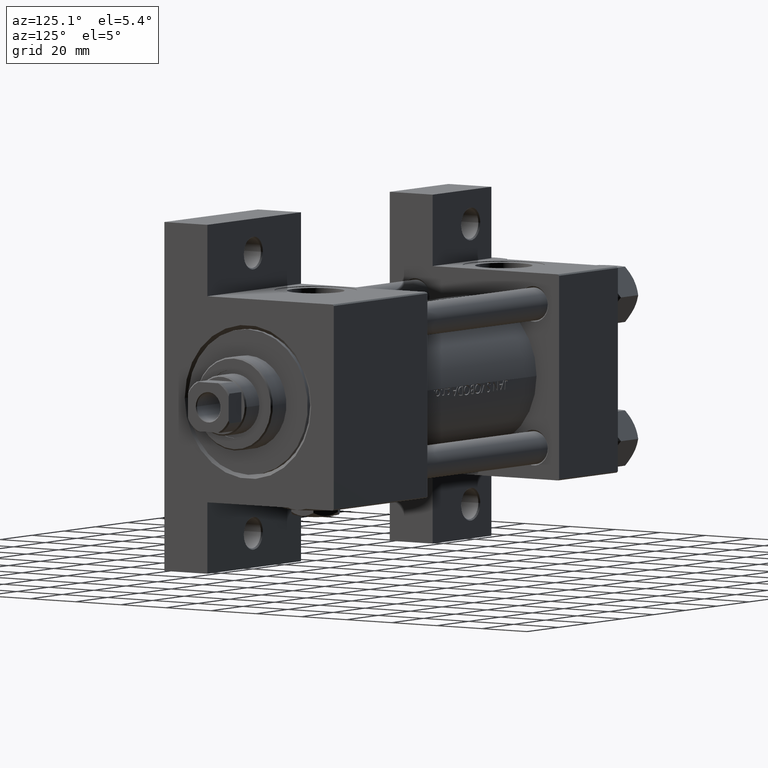
[diagram: clean part render]
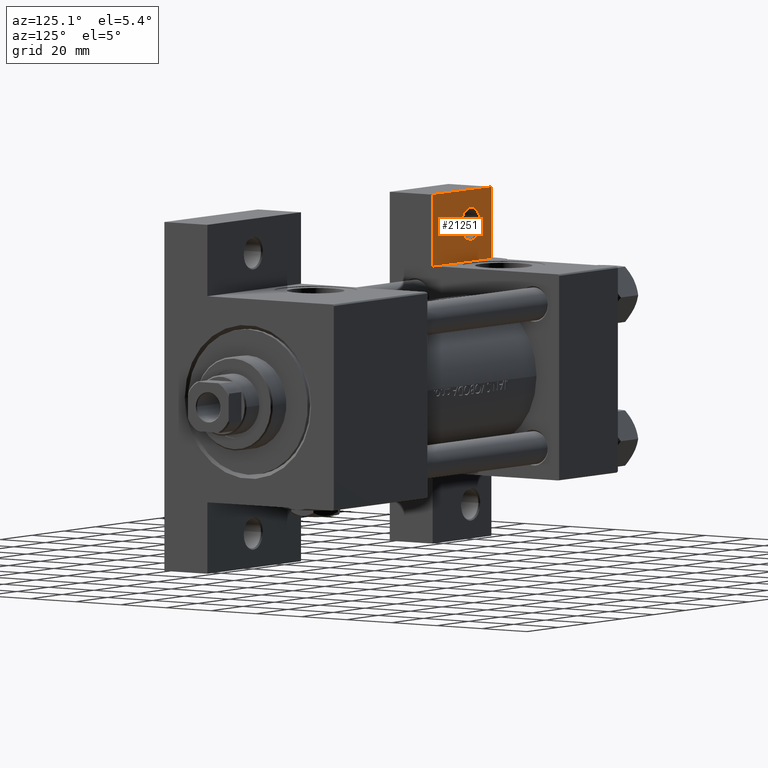
[diagram: same view with one face highlighted and labeled with its STEP entity id]
A machine part, auxiliary view. The second image highlights one B-rep face of the part: STEP entity #21251.
In plain terms, the highlighted planar face has unit normal (0, -1, 0).
Its self-contained STEP definition (entity closure, byte-faithful):
#380 = CARTESIAN_POINT ( 'NONE',  ( 3.977209754999747208E-16, -63.50000000000000000, -18.50000000000000355 ) ) ;
#1837 = VECTOR ( 'NONE', #41695, 1000.000000000000000 ) ;
#2807 = EDGE_CURVE ( 'NONE', #30481, #24777, #46734, .T. ) ;
#3868 = FACE_BOUND ( 'NONE', #40751, .T. ) ;
#4135 = DIRECTION ( 'NONE',  ( 0.000000000000000000, 0.000000000000000000, -1.000000000000000000 ) ) ;
#4576 = AXIS2_PLACEMENT_3D ( 'NONE', #9588, #38992, #5590 ) ;
#5590 = DIRECTION ( 'NONE',  ( -1.000000000000000000, 0.000000000000000000, 0.000000000000000000 ) ) ;
#5653 = EDGE_CURVE ( 'NONE', #26588, #34183, #33521, .T. ) ;
#5978 = CARTESIAN_POINT ( 'NONE',  ( 37.00000000000000000, -63.50000000000000000, -18.50000000000000355 ) ) ;
#6605 = ORIENTED_EDGE ( 'NONE', *, *, #39238, .T. ) ;
#6924 = EDGE_CURVE ( 'NONE', #37749, #31286, #42740, .T. ) ;
#9588 = CARTESIAN_POINT ( 'NONE',  ( 12.99999999999999822, -51.00000000000001421, -18.50000000000000000 ) ) ;
#11605 = EDGE_CURVE ( 'NONE', #24777, #30481, #23827, .T. ) ;
#12734 = ORIENTED_EDGE ( 'NONE', *, *, #11605, .T. ) ;
#12883 = ORIENTED_EDGE ( 'NONE', *, *, #6924, .T. ) ;
#15580 = DIRECTION ( 'NONE',  ( 1.000000000000000000, 0.000000000000000000, 0.000000000000000000 ) ) ;
#15696 = ORIENTED_EDGE ( 'NONE', *, *, #2807, .T. ) ;
#16197 = ORIENTED_EDGE ( 'NONE', *, *, #5653, .T. ) ;
#19320 = DIRECTION ( 'NONE',  ( -1.000000000000000000, 0.000000000000000000, -0.000000000000000000 ) ) ;
#19353 = LINE ( 'NONE', #34544, #48778 ) ;
#21251 = ADVANCED_FACE ( 'NONE', ( #3868, #37993 ), #33511, .F. ) ;
#21672 = CARTESIAN_POINT ( 'NONE',  ( 12.99999999999999822, -51.00000000000001421, -18.50000000000000000 ) ) ;
#22579 = DIRECTION ( 'NONE',  ( 4.278042683914906889E-17, -1.000000000000000000, 0.000000000000000000 ) ) ;
#23255 = CARTESIAN_POINT ( 'NONE',  ( 37.00000000000000000, -63.49999999999998579, -18.50000000000000355 ) ) ;
#23827 = CIRCLE ( 'NONE', #36556, 5.999500000000022482 ) ;
#24777 = VERTEX_POINT ( 'NONE', #47178 ) ;
#25021 = CARTESIAN_POINT ( 'NONE',  ( 7.000499999999975742, -51.00000000000001421, -18.50000000000000000 ) ) ;
#26588 = VERTEX_POINT ( 'NONE', #46471 ) ;
#27962 = CARTESIAN_POINT ( 'NONE',  ( 3.977209754999747208E-16, -63.50000000000000000, -18.50000000000000355 ) ) ;
#30481 = VERTEX_POINT ( 'NONE', #25021 ) ;
#31286 = VERTEX_POINT ( 'NONE', #5978 ) ;
#32503 = VECTOR ( 'NONE', #38458, 1000.000000000000000 ) ;
#33187 = EDGE_LOOP ( 'NONE', ( #6605, #16197, #47166, #12883 ) ) ;
#33511 = PLANE ( 'NONE',  #45883 ) ;
#33521 = LINE ( 'NONE', #37015, #32503 ) ;
#34183 = VERTEX_POINT ( 'NONE', #48935 ) ;
#34544 = CARTESIAN_POINT ( 'NONE',  ( 3.977209754999744250E-16, -63.49999999999998579, -18.50000000000000355 ) ) ;
#35758 = VECTOR ( 'NONE', #15580, 1000.000000000000000 ) ;
#36556 = AXIS2_PLACEMENT_3D ( 'NONE', #21672, #49026, #36871 ) ;
#36871 = DIRECTION ( 'NONE',  ( -1.000000000000000000, 0.000000000000000000, 0.000000000000000000 ) ) ;
#37015 = CARTESIAN_POINT ( 'NONE',  ( -7.145701223179000102E-16, -37.50000000000001421, -18.49999999999999645 ) ) ;
#37749 = VERTEX_POINT ( 'NONE', #27962 ) ;
#37993 = FACE_OUTER_BOUND ( 'NONE', #33187, .T. ) ;
#38257 = CARTESIAN_POINT ( 'NONE',  ( 0.000000000000000000, 0.000000000000000000, -18.50000000000000000 ) ) ;
#38458 = DIRECTION ( 'NONE',  ( -1.000000000000000000, 0.000000000000000000, 0.000000000000000000 ) ) ;
#38714 = LINE ( 'NONE', #23255, #1837 ) ;
#38992 = DIRECTION ( 'NONE',  ( 0.000000000000000000, 0.000000000000000000, -1.000000000000000000 ) ) ;
#39238 = EDGE_CURVE ( 'NONE', #31286, #26588, #38714, .T. ) ;
#40751 = EDGE_LOOP ( 'NONE', ( #12734, #15696 ) ) ;
#41106 = EDGE_CURVE ( 'NONE', #34183, #37749, #19353, .T. ) ;
#41695 = DIRECTION ( 'NONE',  ( -0.000000000000000000, 1.000000000000000000, 0.000000000000000000 ) ) ;
#42740 = LINE ( 'NONE', #380, #35758 ) ;
#45883 = AXIS2_PLACEMENT_3D ( 'NONE', #38257, #4135, #19320 ) ;
#46471 = CARTESIAN_POINT ( 'NONE',  ( 37.00000000000000000, -37.50000000000000000, -18.50000000000000355 ) ) ;
#46734 = CIRCLE ( 'NONE', #4576, 5.999500000000022482 ) ;
#47166 = ORIENTED_EDGE ( 'NONE', *, *, #41106, .T. ) ;
#47178 = CARTESIAN_POINT ( 'NONE',  ( 18.99950000000001893, -51.00000000000001421, -18.50000000000000000 ) ) ;
#48778 = VECTOR ( 'NONE', #22579, 1000.000000000000000 ) ;
#48935 = CARTESIAN_POINT ( 'NONE',  ( -7.145701223179004046E-16, -37.50000000000000711, -18.50000000000000355 ) ) ;
#49026 = DIRECTION ( 'NONE',  ( 0.000000000000000000, 0.000000000000000000, -1.000000000000000000 ) ) ;